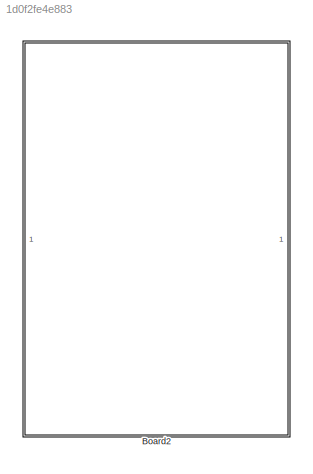
MODEL slx_1d0f2fe4e883
KIND model
CONFIG AbsTol = auto
CONFIG EnableMultiTasking = off
CONFIG FixedStep = 0.001
CONFIG MaxStep = auto
CONFIG MinStep = auto
CONFIG RelTol = 1e-3
CONFIG SampleTimeConstraint = Unconstrained
CONFIG SolverName = FixedStepDiscrete
CONFIG StartTime = 0.0
CONFIG StopTime = 2
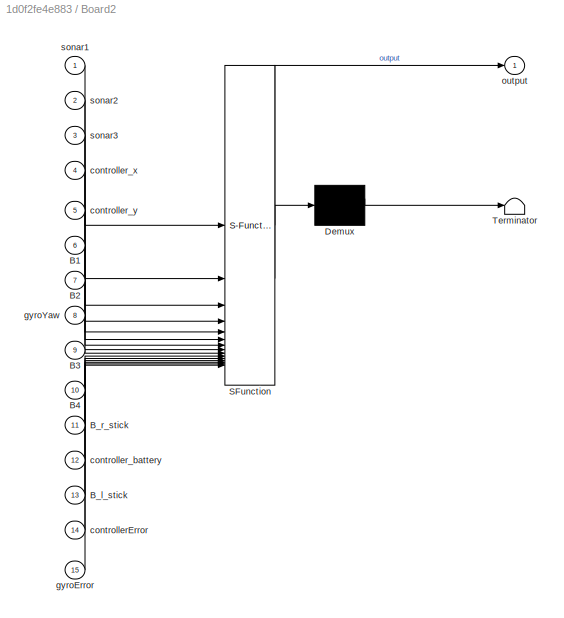
BLOCK [SubSystem] Board2
  ErrorFcn = Stateflow.Translate.translate
  PermitHierarchicalResolution = ExplicitOnly
  PortSchema = {"entries":[{"content":{"sides":[{"content":{"connectorIds":["In1","In2","In3","In8","In4","In5","In6","In7","In9","In10","In11","In13","In14","In15","In12"]},"type":"ConnectorPlacement.EquallySpacedRectSide","uuid":"59fa12a9-69bb-4835-b591-799b8c63f232"},{"content":{"connectorIds":["Out1"],"side":"RIGHT"},"type":"ConnectorPlacement.EquallySpacedRectSide","uuid":"9f740df0-e9e3-4483-9635-edbd40052a...<+312ch>
  SFBlockType = Chart
  TreatAsAtomicUnit = on
BLOCK [Demux] Board2/ Demux 
  Outputs = 1
BLOCK [S-Function] Board2/ SFunction 
  EnableBusSupport = off
  FunctionName = sf_sfun
  PortCounts = [15 2]
  SFcnIsStateOwnerBlock = off
  SFunctionDeploymentMode = off
  Tag = Stateflow S-Function 1
BLOCK [Terminator] Board2/ Terminator 
BLOCK [Inport] Board2/B1
  Port = 6
BLOCK [Inport] Board2/B2
  Port = 7
BLOCK [Inport] Board2/B3
  Port = 9
BLOCK [Inport] Board2/B4
  Port = 10
BLOCK [Inport] Board2/B_l_stick
  Port = 13
BLOCK [Inport] Board2/B_r_stick
  Port = 11
BLOCK [Inport] Board2/controllerError
  Port = 14
BLOCK [Inport] Board2/controller_battery
  Port = 12
BLOCK [Inport] Board2/controller_x
  Port = 4
BLOCK [Inport] Board2/controller_y
  Port = 5
BLOCK [Inport] Board2/gyroError
  Port = 15
BLOCK [Inport] Board2/gyroYaw
  Port = 8
BLOCK [Outport] Board2/output
BLOCK [Inport] Board2/sonar1
BLOCK [Inport] Board2/sonar2
  Port = 2
BLOCK [Inport] Board2/sonar3
  Port = 3
CHART Board2 states=190 transitions=378
  STATE_LABEL 'Lower_MTalk'
  STATE_LABEL "SCRIPT:\nfunction Lower_MTalk\n% Porta a livello basso logico (0) la linea di controllo Master Talk (M_TALK).\n%\n% Descrizione:\n%   Questa funzione agisce sull'hardware della Board 2 (Master). \n%   Nel protocollo di handshake asincrono, l'abbassamento di M_TALK viene usato per:\n%   1. Resettare la linea in fase di inizializzazione o gestione errori.\n%   2. Cedere il controllo del bus allo Slave (Boar...<+334ch>"
  STATE_LABEL 'Init_Data'
  STATE_LABEL "SCRIPT:\nfunction Init_Data\n% Inizializzazione globale del sistema e configurazione di default.\n%\n% Descrizione:\n%   Questa funzione prepara l'ambiente di lavoro iniziale:\n%   1. Richiama i costruttori per tutte le strutture dati complesse\n%   2. Imposta le variabili operative di default.\n\n    % Inizializzazione stati logici\n    state = Init_State(); \n    global_state = Init_Global_State(); \n    de...<+3608ch>"
  STATE_LABEL 'Supervision_task'
  STATE_LABEL 'Board_state'
  STATE_LABEL 'Open_Session'
  STATE_LABEL "SCRIPT:\nfunction Open_Session\n% Imposta a livello alto (1) il segnale hardware SESSION.\n%\n% Descrizione:\n%   Questa funzione marca l'inizio formale di un nuovo ciclo di supervisione.\n%   La Board 2 (Master) alza questa linea per svegliare la Board 1 (Slave)\n%   e indicare che sta iniziando la procedura di sincronizzazione.\n%\n% Dipendenze:\n%   Richiede 'board2_functions.h' e l'implementazione C di ...<+99ch>"
  STATE_LABEL 'Close_Session'
  STATE_LABEL "SCRIPT:\nfunction Close_Session\n% Porta a livello basso (0) il segnale hardware SESSION.\n%\n% Descrizione:\n%   Questa funzione sancisce la chiusura del ciclo di comunicazione corrente.\n%   Viene chiamata dal Master in fase di inizializzazione o \n%   al termine della fase di Scambio Decisione (dopo aver verificato la congruenza).\n%\n% Dipendenze:\n%   Richiede 'board2_functions.h' e l'implementazione C...<+107ch>"
  STATE_LABEL 'y = Get_Timestamp'
  STATE_LABEL "SCRIPT:\nfunction y = Get_Timestamp\n% Ottiene il timestamp attuale del sistema.\n%\n% Descrizione:\n%   Wrapper per la funzione C 'Time_Get_Tick'. Restituisce il valore corrente\n%   del timer di sistema. Questo valore viene salvato e utilizzato come \n%   punto di partenza per calcolare i timeout nelle transizioni di stato.\n%\n% Output:\n%   - y: uint32 rappresentante il tempo attuale del microcontrollor...<+196ch>"
  STATE_LABEL 'Normal\nex: Close_Session(); Lower_MTalk(); Abort_Communication();'
  STATE_LABEL 'Supervisor'
  STATE_LABEL 'Update_Local_State'
  STATE_LABEL 'SCRIPT:\nfunction Update_Local_State\n% Aggiorna la struttura dello stato locale con i valori correnti dei sensori.\n%\n% Descrizione:\n%   Questa funzione esegue uno "snapshot" istantaneo di tutte le variabili \n%   di input (accelerometri, giroscopi, sonar, input utente) e le copia \n%   nella struttura \'state\'. \n\n    coder.cinclude(\'board2_functions.h\');\n   \n    % Ingresso sezione critica: Disabilita ...<+726ch>'
  STATE_LABEL 'Wait_State'
  STATE_LABEL "SCRIPT:\nfunction Wait_State\n% Predispone la ricezione del pacchetto Stato Locale.\n%\n% Descrizione:\n%   Configura il driver UART per ricevere i dati in arrivo e salvarli nella \n%   struttura 'receivedStatePacket'.\n%\n% Dipendenze:\n%   Richiede 'board2_functions.h' e l'implementazione C di 'UART_Wait_State'.\n\n    coder.cinclude('board2_functions.h');\n    coder.ceval('UART_Wait_State', coder.ref(recei...<+21ch>"
  STATE_LABEL 'Update_Global_State'
  STATE_LABEL "SCRIPT:\nfunction Update_Global_State\n% Costruisce la visione globale del sistema.\n%\n% Descrizione:\n%   Questa funzione aggrega le informazioni provenienti dalle due fonti \n%   disponibili per creare il 'Global State':\n%   1. Dati Remoti: Estratti dal pacchetto ricevuto (receivedStatePacket).\n%   2. Dati Locali: Presi dalla struttura 'state' appena.\n%   3. Logica Derivata: Flag calcolati dalla logi...<+973ch>"
  STATE_LABEL 'Wait_Global_State'
  STATE_LABEL "SCRIPT:\nfunction Wait_Global_State\n% Predispone la ricezione del pacchetto Stato Globale.\n%\n% Descrizione:\n%   Configura la ricezione per il pacchetto di Global State.\n%   I dati ricevuti verranno scritti in 'receivedGlobalStatePacket'.\n%\n% Dipendenze:\n%   Richiede 'board2_functions.h' e l'implementazione C di 'UART_Wait_GlobalState'.\n\n    coder.cinclude('board2_functions.h');\n    coder.ceval('UAR...<+63ch>"
  STATE_LABEL 'Send_Local_State'
  STATE_LABEL "SCRIPT:\nfunction Send_Local_State\n% Avvia la trasmissione del pacchetto Stato Locale via UART.\n%\n% Descrizione:\n%   Invoca la routine C che calcola il CRC, serializza la struttura 'state'\n%   e avvia il trasferimento per l'invio.\n%\n% Dipendenze:\n%   Richiede 'board2_functions.h' e l'implementazione C di 'UART_Send_Local_State'.\n\n    coder.cinclude('board2_functions.h');\n    coder.ceval('UART_Send_...<+37ch>"
  STATE_LABEL 'Wait_Decision'
  STATE_LABEL "SCRIPT:\nfunction Wait_Decision\n% Predispone la ricezione del pacchetto Decisione.\n%\n% Descrizione:\n%   Configura la ricezione per il pacchetto contenente i comandi di attuazione.\n%   I dati verranno salvati in 'receivedDecisionPacket'.\n%\n% Dipendenze:\n%   Richiede 'board2_functions.h' e l'implementazione C di 'UART_Wait_Decision'.\n\n    coder.cinclude('board2_functions.h');\n    coder.ceval('UART_Wa...<+53ch>"
  STATE_LABEL 'Send_Global_State'
  STATE_LABEL "SCRIPT:\nfunction Send_Global_State\n% Avvia la trasmissione del pacchetto Stato Globale.\n%\n% Descrizione:\n%   Invia la struttura aggregata 'global_state'.\n%\n% Dipendenze:\n%   Richiede 'board2_functions.h' e l'implementazione C di 'UART_Send_GlobalState'.\n\n    coder.cinclude('board2_functions.h');\n    \n    coder.ceval('UART_Send_GlobalState', coder.rref(global_state));\nend"
  STATE_LABEL 'y = Verify_State_Integrity'
  STATE_LABEL "SCRIPT:\nfunction y = Verify_State_Integrity\n% Verifica l'integrità del pacchetto Stato Locale ricevuto.\n%\n% Descrizione:\n%   Analizza la correttezza della struttura 'receivedStatePacket'.\n%\n% Output:\n%   - y: Boolean\n%     - true: I dati sono validi.\n%     - false: Pacchetto corrotto. \n%\n% Dipendenze:\n%   Richiede 'board2_functions.h' e l'implementazione C di 'CRC_Check_State'.\n\n    coder.cinclude...<+132ch>"
  STATE_LABEL 'Send_Decision'
  STATE_LABEL "SCRIPT:\nfunction Send_Decision\n% Avvia la trasmissione del pacchetto Decisione.\n%\n% Descrizione:\n%   Invia i comandi finali calcolati.\n%\n% Dipendenze:\n%   Richiede 'board2_functions.h' e l'implementazione C di 'UART_Send_Decision'.\n\n    coder.cinclude('board2_functions.h');\n    \n    coder.ceval('UART_Send_Decision', coder.rref(decision));\nend"
  STATE_LABEL 'y = Verify_Global_Integrity'
  STATE_LABEL "SCRIPT:\nfunction y = Verify_Global_Integrity\n% Verifica l'integrità del pacchetto Stato Globale.\n%\n% Descrizione:\n%   Analizza la correttezza della struttura 'receivedGlobalStatePacket'.\n%\n% Output:\n%   - y: Boolean\n%     - true: I dati sono validi.\n%     - false: Pacchetto corrotto. \n%\n% Dipendenze:\n%   Richiede 'board2_functions.h' e l'implementazione C di 'CRC_Check_GlobalState'.\n\n    coder.cin...<+131ch>"
  STATE_LABEL 'Write_Output'
  STATE_LABEL "SCRIPT:\nfunction Write_Output\n% Scrive la decisione in output.\n%\n% Descrizione:\n%   Questa funzione finalizza il ciclo di controllo trasferendo i comandi \n%   dalla struttura logica 'decision' alla struttura 'output'.\n%   La variabile 'output' è l'interfaccia diretta verso i driver di basso livello\n%   che pilotano fisicamente motori, luci e relè.\n% Dipendenze:\n%   Richiede 'board2_functions.h' e ...<+185ch>"
  STATE_LABEL 'y = Verify_Decision_Integrity'
  STATE_LABEL "SCRIPT:\nfunction y = Verify_Decision_Integrity\n% Verifica l'integrità del pacchetto Decisione.\n%\n% Descrizione:\n%   Analizza la correttezza della struttura 'receivedDecisionPacket'.\n%\n%\n% Output:\n%   - y: Boolean\n%     - true: I dati sono validi.\n%     - false: Pacchetto corrotto. \n%\n% Dipendenze:\n%   Richiede 'board2_functions.h' e l'implementazione C di 'CRC_Check_Decision'.\n\n    coder.cinclude(...<+119ch>"
  STATE_LABEL 'Waiting_comunication\nen: Update_Local_State(); Open_Session(); Raise_MTalk();\n time_comm = Get_Timestamp();\n'
  STATE_LABEL 'Transmit_Local_State\nen: Send_Local_State(); time_comm = Get_Timestamp();'
CHART  states=0 transitions=0
